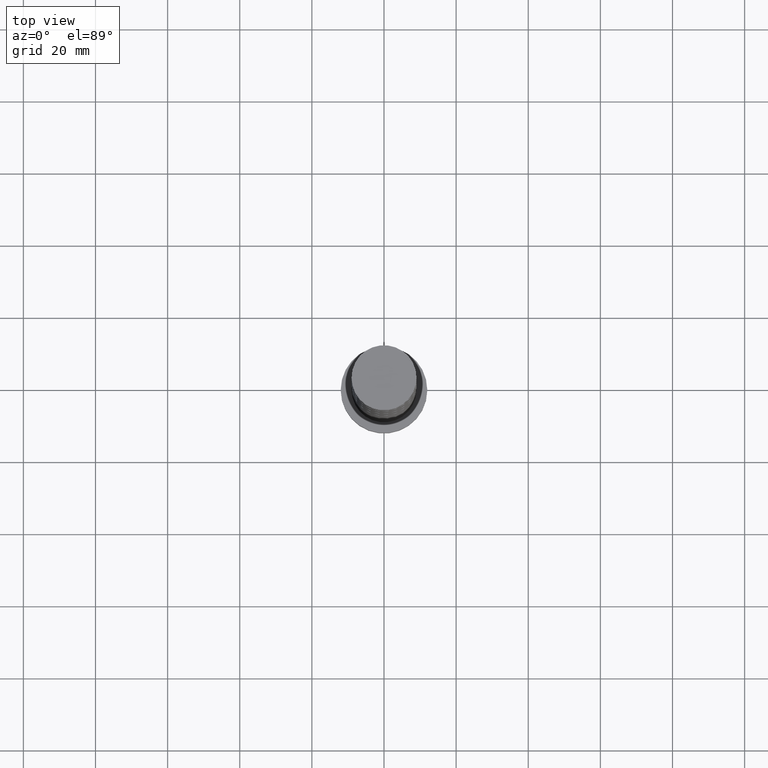
[diagram: clean part render]
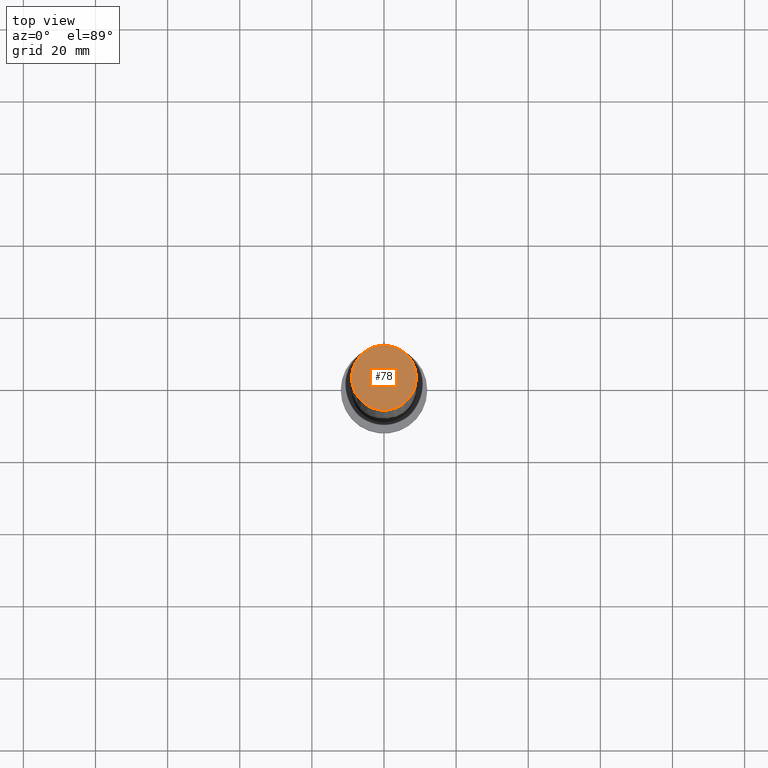
[diagram: same view with one face highlighted and labeled with its STEP entity id]
A machine part, top view. The second image highlights one B-rep face of the part: STEP entity #78.
In plain terms, the highlighted planar face has unit normal (0, 0, 1).
Its self-contained STEP definition (entity closure, byte-faithful):
#11 = DIRECTION ( 'NONE',  ( 1.000000000000000000, 0.000000000000000000, 0.000000000000000000 ) ) ;
#78 = ADVANCED_FACE ( 'NONE', ( #1387 ), #1131, .T. ) ;
#122 = VERTEX_POINT ( 'NONE', #705 ) ;
#181 = DIRECTION ( 'NONE',  ( 0.000000000000000000, 0.000000000000000000, 1.000000000000000000 ) ) ;
#319 = DIRECTION ( 'NONE',  ( 0.000000000000000000, 0.000000000000000000, 1.000000000000000000 ) ) ;
#607 = EDGE_CURVE ( 'NONE', #122, #1472, #1507, .T. ) ;
#625 = ORIENTED_EDGE ( 'NONE', *, *, #957, .T. ) ;
#692 = CARTESIAN_POINT ( 'NONE',  ( 0.000000000000000000, 0.000000000000000000, 200.0000000000000000 ) ) ;
#705 = CARTESIAN_POINT ( 'NONE',  ( 9.000000000000001776, 1.102182119232617911E-15, 200.0000000000000000 ) ) ;
#729 = ORIENTED_EDGE ( 'NONE', *, *, #607, .T. ) ;
#806 = AXIS2_PLACEMENT_3D ( 'NONE', #1224, #319, #11 ) ;
#856 = CARTESIAN_POINT ( 'NONE',  ( 0.000000000000000000, 0.000000000000000000, 200.0000000000000000 ) ) ;
#957 = EDGE_CURVE ( 'NONE', #1472, #122, #1005, .T. ) ;
#1005 = CIRCLE ( 'NONE', #1371, 9.000000000000001776 ) ;
#1121 = DIRECTION ( 'NONE',  ( 1.000000000000000000, 0.000000000000000000, -0.000000000000000000 ) ) ;
#1131 = PLANE ( 'NONE',  #1284 ) ;
#1224 = CARTESIAN_POINT ( 'NONE',  ( 0.000000000000000000, 0.000000000000000000, 200.0000000000000000 ) ) ;
#1284 = AXIS2_PLACEMENT_3D ( 'NONE', #856, #181, #1121 ) ;
#1371 = AXIS2_PLACEMENT_3D ( 'NONE', #692, #1447, #1500 ) ;
#1387 = FACE_OUTER_BOUND ( 'NONE', #1400, .T. ) ;
#1400 = EDGE_LOOP ( 'NONE', ( #625, #729 ) ) ;
#1447 = DIRECTION ( 'NONE',  ( 0.000000000000000000, 0.000000000000000000, 1.000000000000000000 ) ) ;
#1455 = CARTESIAN_POINT ( 'NONE',  ( -9.000000000000001776, 0.000000000000000000, 200.0000000000000000 ) ) ;
#1472 = VERTEX_POINT ( 'NONE', #1455 ) ;
#1500 = DIRECTION ( 'NONE',  ( 1.000000000000000000, 0.000000000000000000, 0.000000000000000000 ) ) ;
#1507 = CIRCLE ( 'NONE', #806, 9.000000000000001776 ) ;